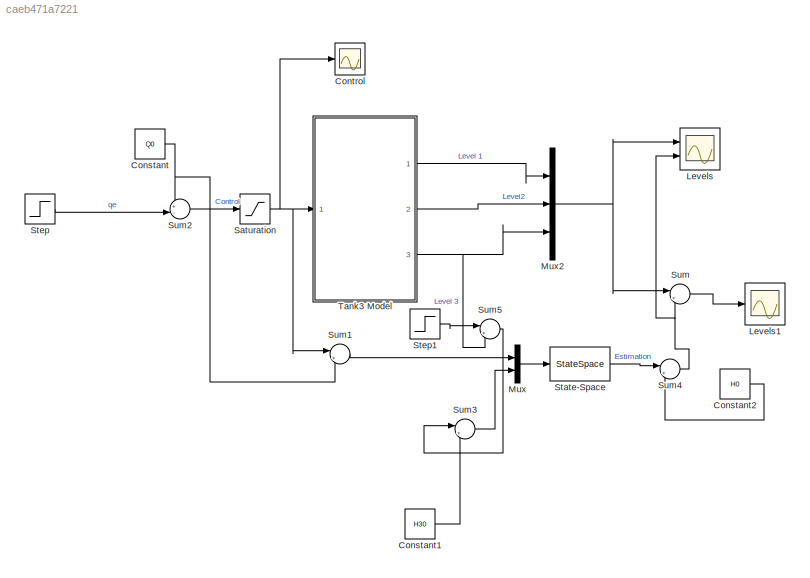
MODEL slx_caeb471a7221
KIND model
CONFIG AbsTol = auto
CONFIG EnableMultiTasking = on
CONFIG FixedStep = auto
CONFIG MaxStep = auto
CONFIG MinStep = auto
CONFIG RelTol = 1e-3
CONFIG SampleTimeConstraint = Unconstrained
CONFIG Solver = ode45
CONFIG SolverName = ode45
CONFIG StartTime = 0.0
CONFIG StopTime = 200
BLOCK [Constant] Constant
  Value = Q0
BLOCK [Constant] Constant1
  Value = H30
BLOCK [Constant] Constant2
  Value = H0
BLOCK [Scope] Control
  Floating = off
  NumInputPorts = 1
  Ports = [1]
  ScopeSpecificationString = Simulink.scopes.TimeScopeBlockCfg('CurrentConfiguration', extmgr.ConfigurationSet(extmgr.Configuration('Core','General UI',true),extmgr.Configuration('Core','Source UI',true),extmgr.Configuration('Sources','WiredSimulink',true,'DataLoggingVariableName','ScopeData2','DataLoggingSaveFormat','StructureWithTime','DataLoggingDecimation','1','DataLoggingDecimateData',true),extmgr.Configuration('Visuals'...<+1682ch>
BLOCK [Scope] Levels
  Floating = off
  NumInputPorts = 2
  Ports = [2]
  ScopeSpecificationString = Simulink.scopes.TimeScopeBlockCfg('CurrentConfiguration', extmgr.ConfigurationSet(extmgr.Configuration('Core','General UI',true),extmgr.Configuration('Core','Source UI',true),extmgr.Configuration('Sources','WiredSimulink',true,'DataLoggingSaveFormat','StructureWithTime','DataLoggingDecimation','1','DataLoggingDecimateData',true,'DataLogging',true,'DataLoggingVariableName','Estimated_level'),extmgr...<+1819ch>
BLOCK [Scope] Levels1
  Floating = off
  NumInputPorts = 1
  Ports = [1]
  ScopeSpecificationString = Simulink.scopes.TimeScopeBlockCfg('CurrentConfiguration', extmgr.ConfigurationSet(extmgr.Configuration('Core','General UI',true),extmgr.Configuration('Core','Source UI',true),extmgr.Configuration('Sources','WiredSimulink',true,'DataLoggingSaveFormat','StructureWithTime','DataLoggingDecimation','1','DataLoggingDecimateData',true,'DataLoggingVariableName','Error','DataLogging',true),extmgr.Configura...<+1810ch>
BLOCK [Mux] Mux
  DisplayOption = bar
  Inputs = 2
  Ports = [2, 1]
BLOCK [Mux] Mux2
  DisplayOption = bar
  Inputs = 3
  Ports = [3, 1]
BLOCK [Saturate] Saturation
  InputPortMap = u0
  LowerLimit = 0
  Ports = [1, 1]
  UpperLimit = Qmax
BLOCK [StateSpace] State-Space
  A = A-L3*C
  B = [B L3]
  C = eye(3)
  D = zeros(3,2)
  InitialCondition = H0L
  Ports = [1, 1]
BLOCK [Step] Step
  After = 0
  SampleTime = 0
  Time = 300
BLOCK [Step] Step1
  After = 0.05
  SampleTime = 0
  Time = 100
BLOCK [Sum] Sum
  IconShape = round
  InputSameDT = off
  Inputs = |+-
  OutDataTypeStr = Inherit: Inherit via internal rule
  Ports = [2, 1]
  SaturateOnIntegerOverflow = off
BLOCK [Sum] Sum1
  IconShape = round
  InputSameDT = off
  Inputs = |+-
  OutDataTypeStr = Inherit: Inherit via internal rule
  Ports = [2, 1]
  SaturateOnIntegerOverflow = off
BLOCK [Sum] Sum2
  IconShape = round
  InputSameDT = off
  Inputs = +-|
  OutDataTypeStr = Inherit: Inherit via internal rule
  Ports = [2, 1]
  SaturateOnIntegerOverflow = off
BLOCK [Sum] Sum3
  IconShape = round
  InputSameDT = off
  Inputs = |+-
  OutDataTypeStr = Inherit: Inherit via internal rule
  Ports = [2, 1]
  SaturateOnIntegerOverflow = off
BLOCK [Sum] Sum4
  IconShape = round
  InputSameDT = off
  Inputs = |++
  OutDataTypeStr = Inherit: Inherit via internal rule
  Ports = [2, 1]
  SaturateOnIntegerOverflow = off
BLOCK [Sum] Sum5
  IconShape = round
  InputSameDT = off
  Inputs = |++
  OutDataTypeStr = Inherit: Inherit via internal rule
  Ports = [2, 1]
  SaturateOnIntegerOverflow = off
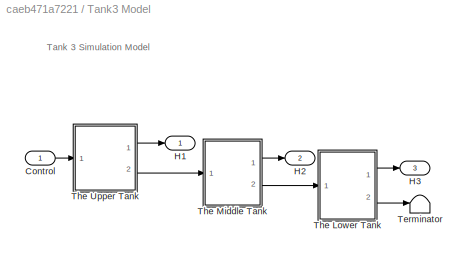
BLOCK [SubSystem] Tank3 Model
  Ports = [1, 3]
  RequestExecContextInheritance = off
BLOCK [Inport] Tank3 Model/Control
  IconDisplay = Port number
BLOCK [Outport] Tank3 Model/H1
  IconDisplay = Port number
BLOCK [Outport] Tank3 Model/H2
  IconDisplay = Port number
  Port = 2
BLOCK [Outport] Tank3 Model/H3
  IconDisplay = Port number
  Port = 3
BLOCK [Terminator] Tank3 Model/Terminator
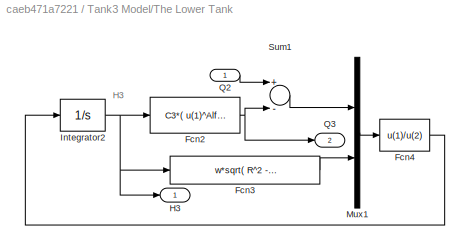
BLOCK [SubSystem] Tank3 Model/The Lower Tank
  Ports = [1, 2]
  RequestExecContextInheritance = off
BLOCK [Fcn] Tank3 Model/The Lower Tank/Fcn2
  Expr = C3*( u(1)^Alfa3 )
BLOCK [Fcn] Tank3 Model/The Lower Tank/Fcn3
  Expr = w*sqrt( R^2 - (H3max-u(1))^2 )
BLOCK [Fcn] Tank3 Model/The Lower Tank/Fcn4
  Expr = u(1)/u(2)
BLOCK [Outport] Tank3 Model/The Lower Tank/H3
  IconDisplay = Port number
BLOCK [Integrator] Tank3 Model/The Lower Tank/Integrator2
  InitialCondition = H0(3)
  LimitOutput = on
  LowerSaturationLimit = 0.001
  Ports = [1, 1]
  UpperSaturationLimit = 0.3
BLOCK [Mux] Tank3 Model/The Lower Tank/Mux1
  DisplayOption = bar
  Inputs = 2
  Ports = [2, 1]
BLOCK [Inport] Tank3 Model/The Lower Tank/Q2
  IconDisplay = Port number
BLOCK [Outport] Tank3 Model/The Lower Tank/Q3
  IconDisplay = Port number
  Port = 2
BLOCK [Sum] Tank3 Model/The Lower Tank/Sum1
  Inputs = +-
  Ports = [2, 1]
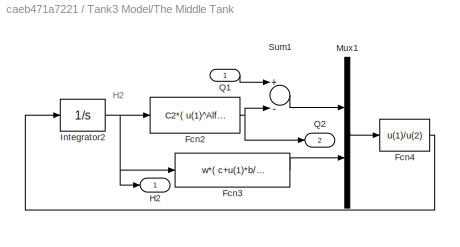
BLOCK [SubSystem] Tank3 Model/The Middle Tank
  Ports = [1, 2]
  RequestExecContextInheritance = off
BLOCK [Fcn] Tank3 Model/The Middle Tank/Fcn2
  Expr = C2*( u(1)^Alfa2 )
BLOCK [Fcn] Tank3 Model/The Middle Tank/Fcn3
  Expr = w*( c+u(1)*b/H2max )
BLOCK [Fcn] Tank3 Model/The Middle Tank/Fcn4
  Expr = u(1)/u(2)
BLOCK [Outport] Tank3 Model/The Middle Tank/H2
  IconDisplay = Port number
BLOCK [Integrator] Tank3 Model/The Middle Tank/Integrator2
  InitialCondition = H0(2)
  LimitOutput = on
  LowerSaturationLimit = 0.001
  Ports = [1, 1]
  UpperSaturationLimit = 0.3
BLOCK [Mux] Tank3 Model/The Middle Tank/Mux1
  DisplayOption = bar
  Inputs = 2
  Ports = [2, 1]
BLOCK [Inport] Tank3 Model/The Middle Tank/Q1
  IconDisplay = Port number
BLOCK [Outport] Tank3 Model/The Middle Tank/Q2
  IconDisplay = Port number
  Port = 2
BLOCK [Sum] Tank3 Model/The Middle Tank/Sum1
  Inputs = +-
  Ports = [2, 1]
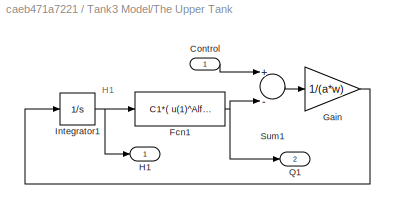
BLOCK [SubSystem] Tank3 Model/The Upper Tank
  Ports = [1, 2]
  RequestExecContextInheritance = off
BLOCK [Inport] Tank3 Model/The Upper Tank/Control
  IconDisplay = Port number
BLOCK [Fcn] Tank3 Model/The Upper Tank/Fcn1
  Expr = C1*( u(1)^Alfa1 )
BLOCK [Gain] Tank3 Model/The Upper Tank/Gain
  Gain = 1/(a*w)
BLOCK [Outport] Tank3 Model/The Upper Tank/H1
  IconDisplay = Port number
BLOCK [Integrator] Tank3 Model/The Upper Tank/Integrator1
  InitialCondition = H0(1)
  LimitOutput = on
  LowerSaturationLimit = 0.001
  Ports = [1, 1]
  UpperSaturationLimit = 0.3
BLOCK [Outport] Tank3 Model/The Upper Tank/Q1
  IconDisplay = Port number
  Port = 2
BLOCK [Sum] Tank3 Model/The Upper Tank/Sum1
  Inputs = +-
  Ports = [2, 1]
ANNOTATION Tank3 Model: Tank 3 Simulation Model
ANNOTATION Tank3 Model/The Lower Tank: H3
ANNOTATION Tank3 Model/The Middle Tank: H2
ANNOTATION Tank3 Model/The Upper Tank: H1
LINE Constant1:1 -> Sum3:2
LINE Constant2:1 -> Sum4:2
NET Constant:1 -> Sum1:2, Sum2:1
NET Mux2:1 -> Levels:1, Sum:1
LINE Mux:1 -> State-Space:1
NET Saturation:1 -> Control:1, Sum1:1, Tank3 Model:1
LINE State-Space:1 -> Sum4:1
LINE Step1:1 -> Sum5:1
LINE Step:1 -> Sum2:2
LINE Sum1:1 -> Mux:1
LINE Sum2:1 -> Saturation:1
LINE Sum3:1 -> Mux:2
NET Sum4:1 -> Levels:2, Sum:2
LINE Sum5:1 -> Sum3:1
LINE Sum:1 -> Levels1:1
LINE Tank3 Model/Control:1 -> Tank3 Model/The Upper Tank:1
NET Tank3 Model/The Lower Tank/Fcn2:1 -> Tank3 Model/The Lower Tank/Q3:1, Tank3 Model/The Lower Tank/Sum1:2
LINE Tank3 Model/The Lower Tank/Fcn3:1 -> Tank3 Model/The Lower Tank/Mux1:2
LINE Tank3 Model/The Lower Tank/Fcn4:1 -> Tank3 Model/The Lower Tank/Integrator2:1
NET Tank3 Model/The Lower Tank/Integrator2:1 -> Tank3 Model/The Lower Tank/Fcn2:1, Tank3 Model/The Lower Tank/Fcn3:1, Tank3 Model/The Lower Tank/H3:1
LINE Tank3 Model/The Lower Tank/Mux1:1 -> Tank3 Model/The Lower Tank/Fcn4:1
LINE Tank3 Model/The Lower Tank/Q2:1 -> Tank3 Model/The Lower Tank/Sum1:1
LINE Tank3 Model/The Lower Tank/Sum1:1 -> Tank3 Model/The Lower Tank/Mux1:1
LINE Tank3 Model/The Lower Tank:1 -> Tank3 Model/H3:1
LINE Tank3 Model/The Lower Tank:2 -> Tank3 Model/Terminator:1
NET Tank3 Model/The Middle Tank/Fcn2:1 -> Tank3 Model/The Middle Tank/Q2:1, Tank3 Model/The Middle Tank/Sum1:2
LINE Tank3 Model/The Middle Tank/Fcn3:1 -> Tank3 Model/The Middle Tank/Mux1:2
LINE Tank3 Model/The Middle Tank/Fcn4:1 -> Tank3 Model/The Middle Tank/Integrator2:1
NET Tank3 Model/The Middle Tank/Integrator2:1 -> Tank3 Model/The Middle Tank/Fcn2:1, Tank3 Model/The Middle Tank/Fcn3:1, Tank3 Model/The Middle Tank/H2:1
LINE Tank3 Model/The Middle Tank/Mux1:1 -> Tank3 Model/The Middle Tank/Fcn4:1
LINE Tank3 Model/The Middle Tank/Q1:1 -> Tank3 Model/The Middle Tank/Sum1:1
LINE Tank3 Model/The Middle Tank/Sum1:1 -> Tank3 Model/The Middle Tank/Mux1:1
LINE Tank3 Model/The Middle Tank:1 -> Tank3 Model/H2:1
LINE Tank3 Model/The Middle Tank:2 -> Tank3 Model/The Lower Tank:1
LINE Tank3 Model/The Upper Tank/Control:1 -> Tank3 Model/The Upper Tank/Sum1:1
NET Tank3 Model/The Upper Tank/Fcn1:1 -> Tank3 Model/The Upper Tank/Q1:1, Tank3 Model/The Upper Tank/Sum1:2
LINE Tank3 Model/The Upper Tank/Gain:1 -> Tank3 Model/The Upper Tank/Integrator1:1
NET Tank3 Model/The Upper Tank/Integrator1:1 -> Tank3 Model/The Upper Tank/Fcn1:1, Tank3 Model/The Upper Tank/H1:1
LINE Tank3 Model/The Upper Tank/Sum1:1 -> Tank3 Model/The Upper Tank/Gain:1
LINE Tank3 Model/The Upper Tank:1 -> Tank3 Model/H1:1
LINE Tank3 Model/The Upper Tank:2 -> Tank3 Model/The Middle Tank:1
LINE Tank3 Model:1 -> Mux2:1
LINE Tank3 Model:2 -> Mux2:2
NET Tank3 Model:3 -> Mux2:3, Sum5:2
note: NET lines group one-source signal fan-out (src -> all destinations, sorted); 1:1 wires keep LINE
